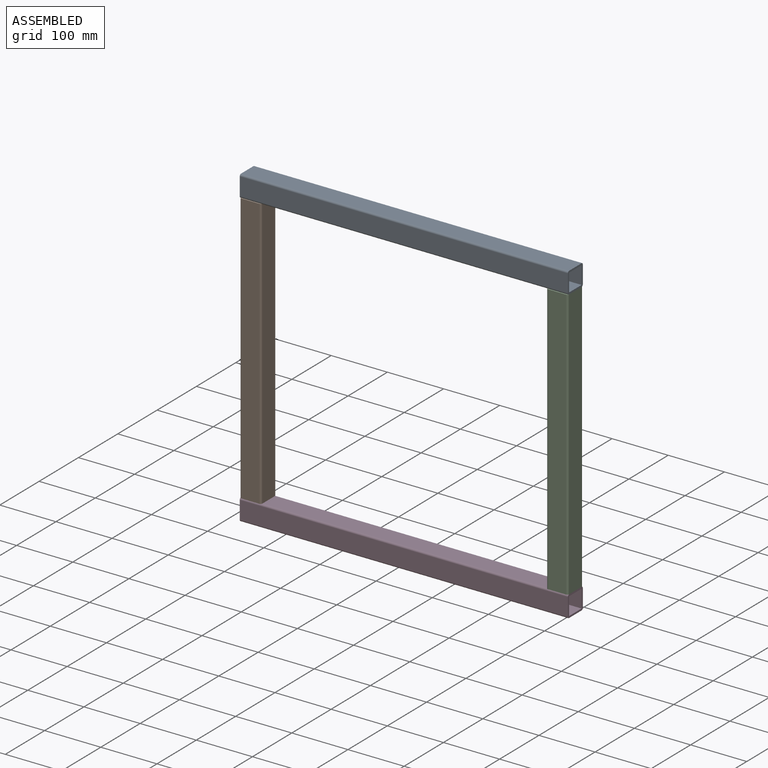
[diagram: assembled view]
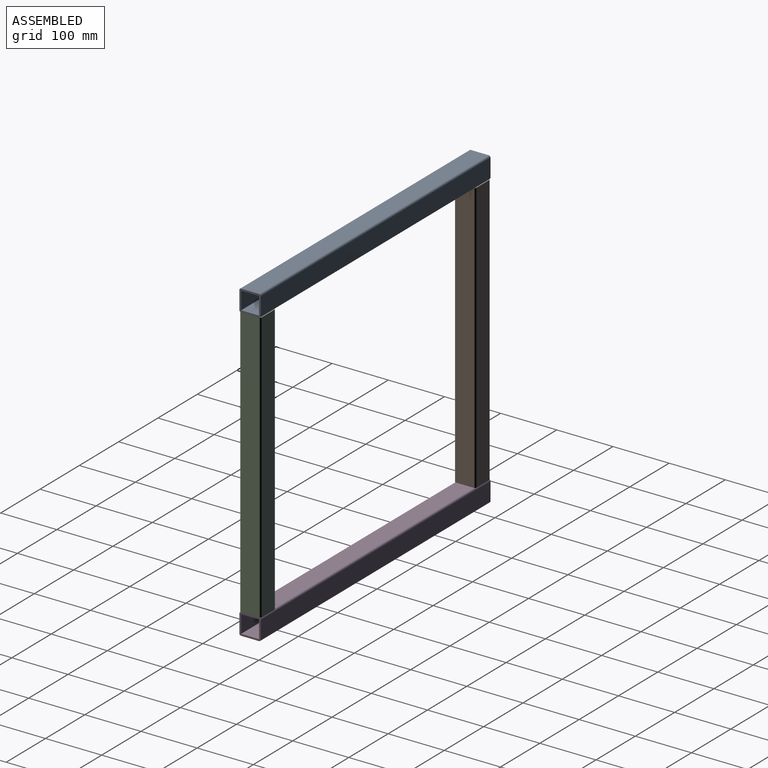
[diagram: assembled view, second angle]
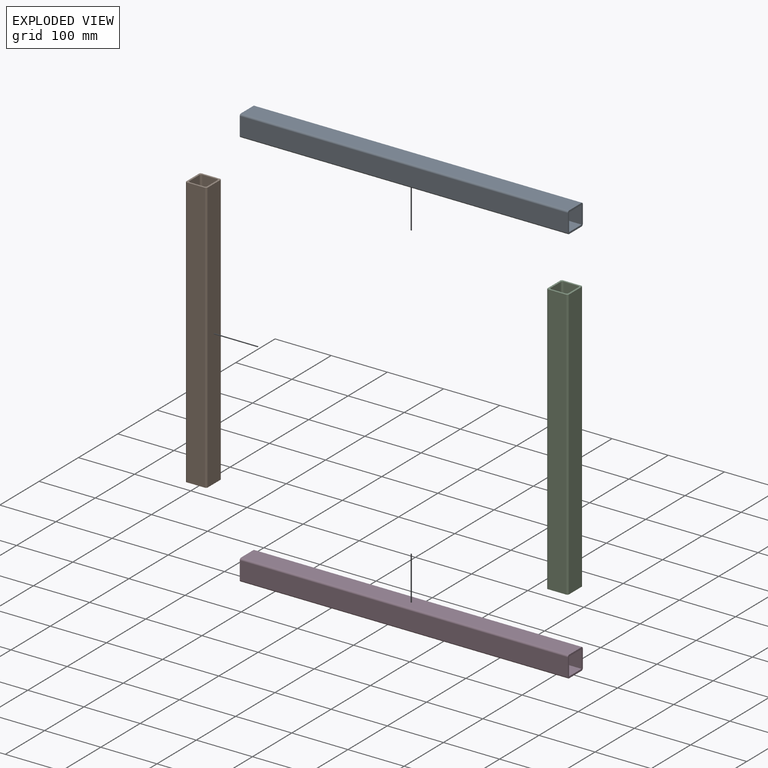
[diagram: exploded view]
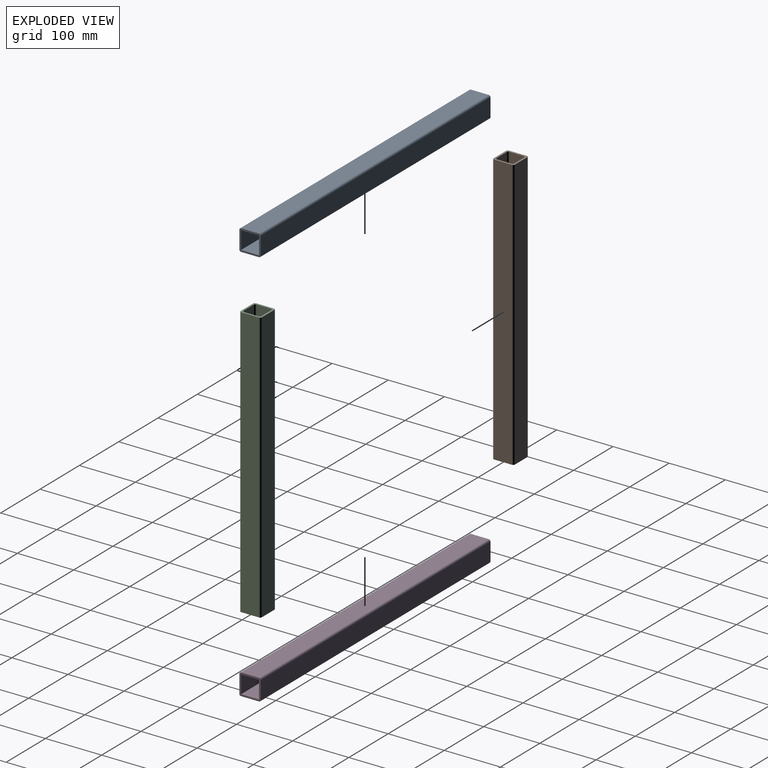
[diagram: exploded view, second angle]
ASSEMBLY  parts=4 mates=3
PART A: 14 faces, bbox 584.2x38.1x38.1 mm
  f0: plane 584.2x31.75mm, normal (0,0,-1), area 18548.4mm2, adj f8,f9,f10,f13
  f1: plane 584.2x31.75mm, normal (0,1,0), area 18548.4mm2, adj f8,f9,f10,f11
  f2: plane 584.2x31.75mm, normal (0,0,1), area 18548.4mm2, adj f8,f9,f11,f12
  f3: plane 584.2x31.75mm, normal (0,-1,0), area 18548.4mm2, adj f4,f6,f8,f9
  f4: plane 584.2x31.75mm, normal (0,0,1), area 18548.4mm2, adj f3,f5,f8,f9
  f5: plane 584.2x31.75mm, normal (0,1,0), area 18548.4mm2, adj f4,f6,f8,f9
  f6: plane 584.2x31.75mm, normal (0,0,-1), area 18548.4mm2, adj f3,f5,f8,f9
  f7: plane 584.2x31.75mm, normal (0,-1,0), area 18548.4mm2, adj f8,f9,f12,f13
  f8: plane 38.1x38.1mm, normal (1,0,0), area 434.9mm2, adj f0,f1,f2,f3,f4,f5,f6,f7
  f9: plane 38.1x38.1mm, normal (-1,0,0), area 434.9mm2, adj f0,f1,f2,f3,f4,f5,f6,f7
  f10: cylinder r=3.17mm len=584.2mm, axis (1,0,0), area 2913.6mm2, adj f0,f1,f8,f9
  f11: cylinder r=3.17mm len=584.2mm, axis (-1,0,0), area 2913.6mm2, adj f1,f2,f8,f9
  f12: cylinder r=3.17mm len=584.2mm, axis (1,0,0), area 2913.6mm2, adj f2,f7,f8,f9
  f13: cylinder r=3.17mm len=584.2mm, axis (-1,0,0), area 2913.6mm2, adj f0,f7,f8,f9
PART B: 18 faces, bbox 38.1x38.1x482.6 mm
  f0: plane 482.6x31.75mm, normal (0,1,0), area 15322.5mm2, adj f1,f15,f16,f17
  f1: cylinder r=3.17mm len=482.6mm, axis (0,0,-1), area 2406.9mm2, adj f0,f2,f16,f17
  f2: plane 482.6x31.75mm, normal (-1,0,0), area 15322.6mm2, adj f1,f3,f16,f17
  f3: cylinder r=3.17mm len=482.6mm, axis (0,0,-1), area 2406.9mm2, adj f2,f4,f16,f17
  f4: plane 482.6x31.75mm, normal (0,-1,0), area 15322.5mm2, adj f3,f5,f16,f17
  f5: cylinder r=3.17mm len=482.6mm, axis (0,0,-1), area 2406.9mm2, adj f4,f6,f16,f17
  f6: plane 482.6x31.75mm, normal (1,0,0), area 15322.6mm2, adj f5,f15,f16,f17
  f7: cylinder r=3.17mm len=482.6mm, axis (0,0,-1), area 2406.9mm2, adj f8,f14,f16,f17
  f8: plane 482.6x25.4mm, normal (-1,0,0), area 12258mm2, adj f7,f9,f16,f17
  f9: cylinder r=3.17mm len=482.6mm, axis (0,0,-1), area 2406.9mm2, adj f8,f10,f16,f17
  f10: plane 482.6x25.4mm, normal (0,1,0), area 12258mm2, adj f9,f11,f16,f17
  f11: cylinder r=3.17mm len=482.6mm, axis (0,0,-1), area 2406.9mm2, adj f10,f12,f16,f17
  f12: plane 482.6x25.4mm, normal (1,0,0), area 12258mm2, adj f11,f13,f16,f17
  f13: cylinder r=3.17mm len=482.6mm, axis (0,0,-1), area 2406.9mm2, adj f12,f14,f16,f17
  f14: plane 482.6x25.4mm, normal (0,-1,0), area 12258mm2, adj f7,f13,f16,f17
  f15: cylinder r=3.17mm len=482.6mm, axis (0,0,-1), area 2406.9mm2, adj f0,f6,f16,f17
  f16: plane 38.1x38.1mm, normal (0,0,1), area 443.5mm2, adj f0,f1,f2,f3,f4,f5,f6,f7
  f17: plane 38.1x38.1mm, normal (0,0,-1), area 443.5mm2, adj f0,f1,f2,f3,f4,f5,f6,f7
PART C: same geometry as B
PART D: same geometry as A
PLACE A t=(-46.02,280.89,208.22)mm
PLACE B t=(-26.97,280.89,-293.43)mm
PLACE C t=(519.13,280.89,-293.43)mm
PLACE D t=(-46.02,280.89,-312.48)mm
MATE fastened C.f16 <-> A.f0  axis (0,0,1) through (538.18,296.76,189.17)mm
MATE fastened B.f17 <-> D.f2  axis (0,0,-1) through (-46.02,265.01,-293.43)mm
MATE fastened B.f2 <-> A.f9  axis (-1,0,0) through (-46.02,265.01,189.17)mm
